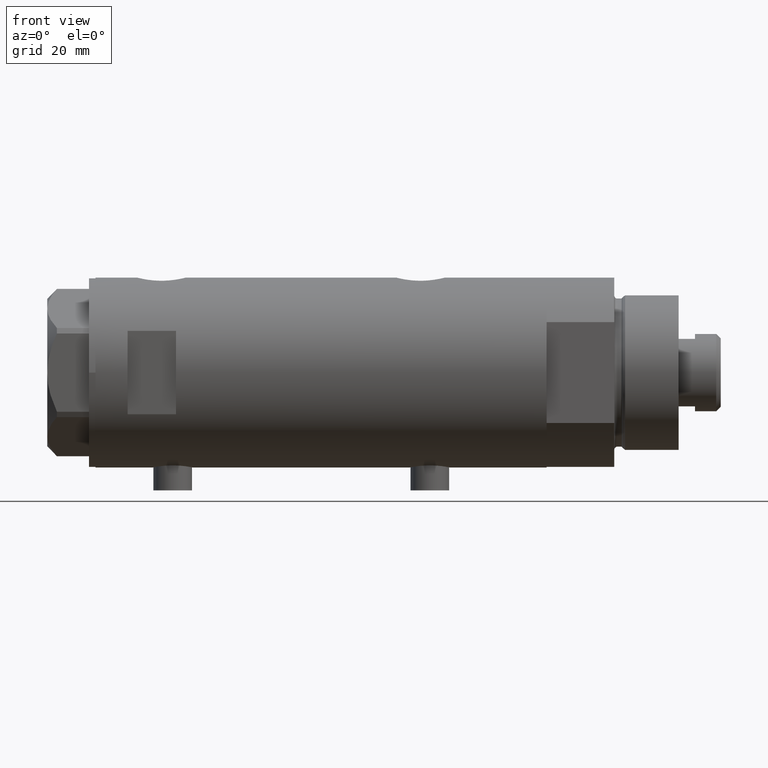
[diagram: clean part render]
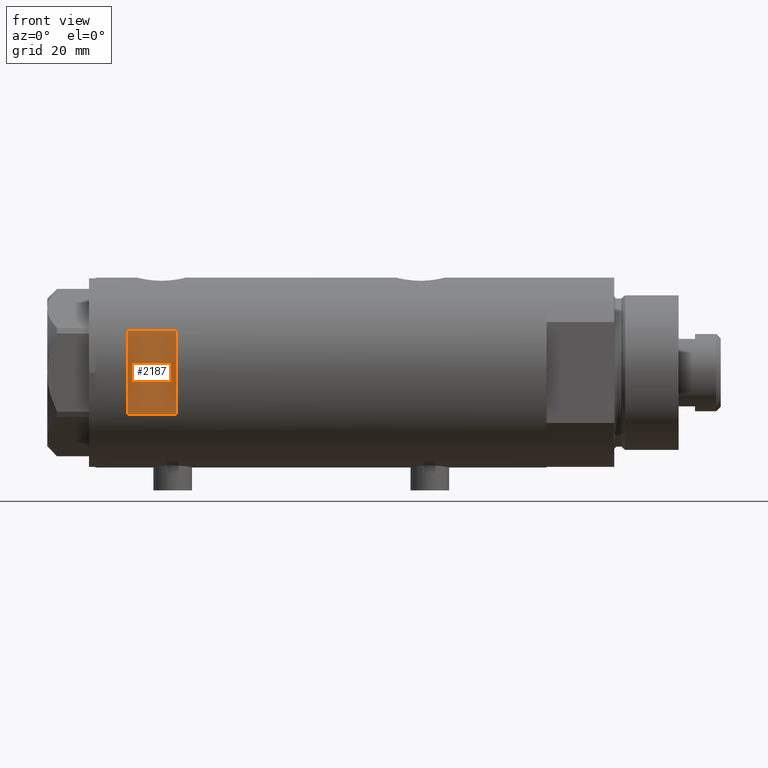
[diagram: same view with one face highlighted and labeled with its STEP entity id]
A machine part, front view. The second image highlights one B-rep face of the part: STEP entity #2187.
In plain terms, the highlighted planar face has unit normal (-0, 1, 0).
Its self-contained STEP definition (entity closure, byte-faithful):
#15 = VECTOR ( 'NONE', #949, 1000.000000000000000 ) ;
#277 = DIRECTION ( 'NONE',  ( 1.000000000000000000, -0.000000000000000000, -0.000000000000000000 ) ) ;
#472 = VERTEX_POINT ( 'NONE', #3911 ) ;
#586 = ORIENTED_EDGE ( 'NONE', *, *, #3422, .T. ) ;
#666 = EDGE_CURVE ( 'NONE', #3529, #1676, #2070, .T. ) ;
#935 = VECTOR ( 'NONE', #2837, 1000.000000000000000 ) ;
#943 = VECTOR ( 'NONE', #1987, 1000.000000000000000 ) ;
#949 = DIRECTION ( 'NONE',  ( 1.000000000000000000, -0.000000000000000000, -0.000000000000000000 ) ) ;
#981 = ORIENTED_EDGE ( 'NONE', *, *, #1101, .F. ) ;
#991 = PLANE ( 'NONE',  #1788 ) ;
#1101 = EDGE_CURVE ( 'NONE', #3529, #2175, #2119, .T. ) ;
#1277 = DIRECTION ( 'NONE',  ( 0.000000000000000000, -0.000000000000000000, 1.000000000000000000 ) ) ;
#1314 = CARTESIAN_POINT ( 'NONE',  ( -12.96148139681573319, -26.49999999999998934, 60.09999999999998721 ) ) ;
#1335 = EDGE_CURVE ( 'NONE', #1676, #472, #1670, .T. ) ;
#1670 = LINE ( 'NONE', #4286, #15 ) ;
#1676 = VERTEX_POINT ( 'NONE', #2256 ) ;
#1788 = AXIS2_PLACEMENT_3D ( 'NONE', #2859, #3215, #1277 ) ;
#1987 = DIRECTION ( 'NONE',  ( 0.000000000000000000, 0.000000000000000000, 1.000000000000000000 ) ) ;
#2067 = FACE_OUTER_BOUND ( 'NONE', #4721, .T. ) ;
#2070 = LINE ( 'NONE', #3188, #935 ) ;
#2119 = LINE ( 'NONE', #3615, #3277 ) ;
#2175 = VERTEX_POINT ( 'NONE', #2568 ) ;
#2187 = ADVANCED_FACE ( 'NONE', ( #2067 ), #991, .F. ) ;
#2256 = CARTESIAN_POINT ( 'NONE',  ( -12.96148139681573319, -26.49999999999998934, 45.09999999999998721 ) ) ;
#2568 = CARTESIAN_POINT ( 'NONE',  ( 12.96148139681573319, -26.49999999999998934, 60.09999999999998721 ) ) ;
#2773 = CARTESIAN_POINT ( 'NONE',  ( 12.96148139681573319, -26.49999999999999645, -70.09999999999999432 ) ) ;
#2837 = DIRECTION ( 'NONE',  ( -0.000000000000000000, -0.000000000000000000, -1.000000000000000000 ) ) ;
#2859 = CARTESIAN_POINT ( 'NONE',  ( -29.50000000000000355, -26.50000000000000355, 60.09999999999998721 ) ) ;
#3188 = CARTESIAN_POINT ( 'NONE',  ( -12.96148139681573319, -26.49999999999999645, -70.09999999999999432 ) ) ;
#3215 = DIRECTION ( 'NONE',  ( 0.000000000000000000, 1.000000000000000000, 0.000000000000000000 ) ) ;
#3277 = VECTOR ( 'NONE', #277, 1000.000000000000000 ) ;
#3422 = EDGE_CURVE ( 'NONE', #472, #2175, #3875, .T. ) ;
#3529 = VERTEX_POINT ( 'NONE', #1314 ) ;
#3615 = CARTESIAN_POINT ( 'NONE',  ( -29.50000000000000355, -26.50000000000000355, 60.09999999999998721 ) ) ;
#3875 = LINE ( 'NONE', #2773, #943 ) ;
#3911 = CARTESIAN_POINT ( 'NONE',  ( 12.96148139681573319, -26.49999999999998934, 45.09999999999998721 ) ) ;
#4286 = CARTESIAN_POINT ( 'NONE',  ( -29.50000000000000355, -26.50000000000000355, 45.09999999999998721 ) ) ;
#4413 = ORIENTED_EDGE ( 'NONE', *, *, #666, .T. ) ;
#4721 = EDGE_LOOP ( 'NONE', ( #4413, #4779, #586, #981 ) ) ;
#4779 = ORIENTED_EDGE ( 'NONE', *, *, #1335, .T. ) ;